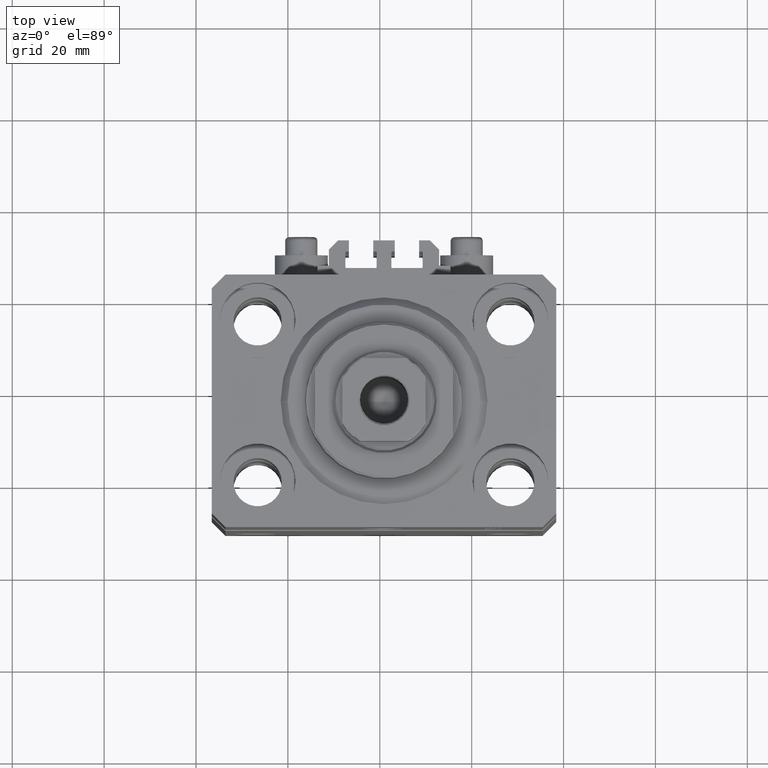
[diagram: clean part render]
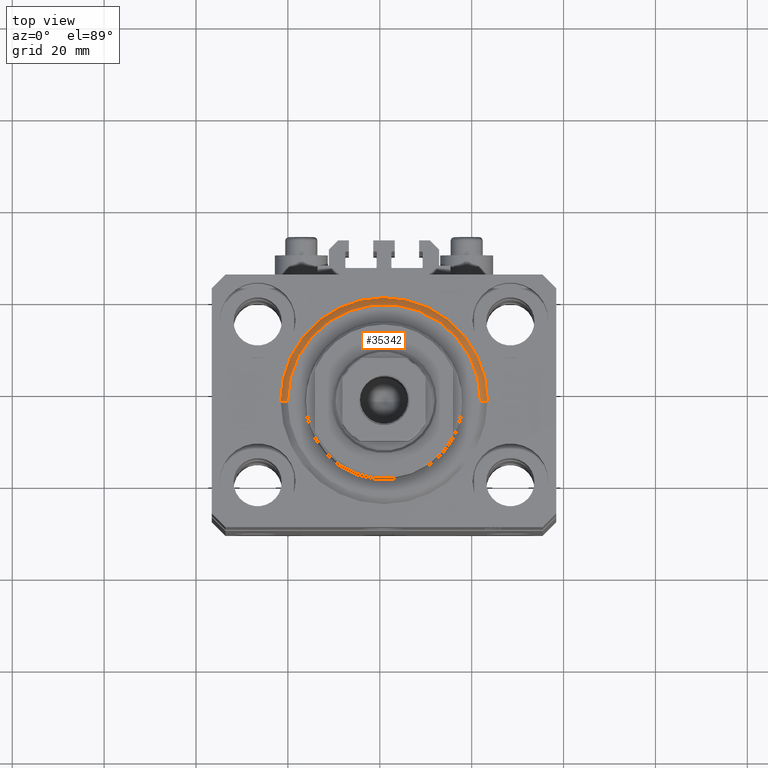
[diagram: same view with one face highlighted and labeled with its STEP entity id]
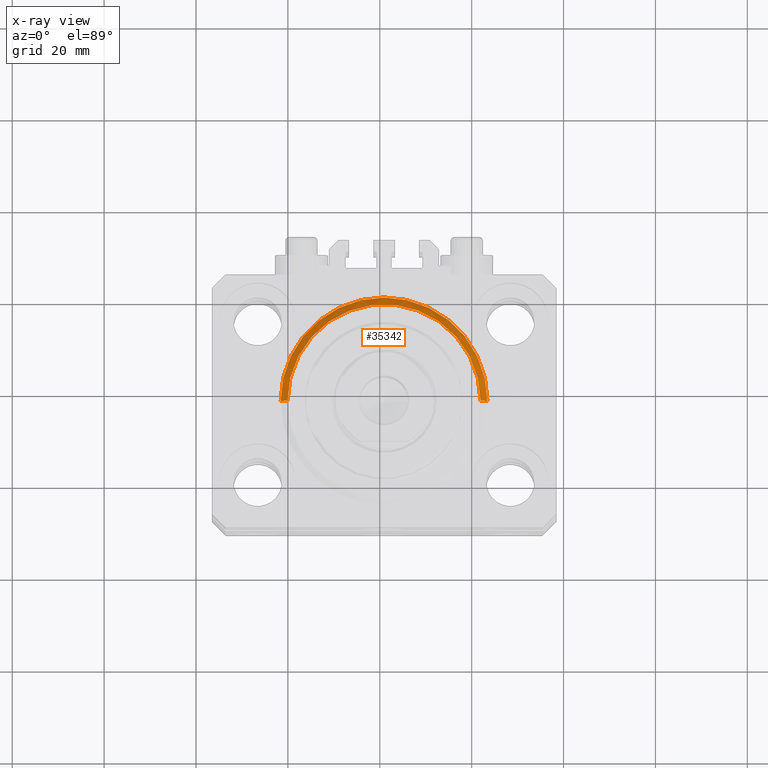
[diagram: x-ray of the same camera — body ghosted, the highlighted face saturated]
A machine part, top view. The second image highlights one B-rep face of the part: STEP entity #35342.
The next image is the same camera in x-ray: the body ghosted, the highlighted face saturated — about 0% of this face is hidden behind the body in this view.
In plain terms, the highlighted conical surface has half-angle 45 deg.
Its self-contained STEP definition (entity closure, byte-faithful):
#22 = DIRECTION ( 'NONE',  ( 0.7071067811865500152, 0.000000000000000000, 0.7071067811865451302 ) ) ;
#1331 = CARTESIAN_POINT ( 'NONE',  ( -20.99999999999998934, 2.663606788145492628E-15, 0.000000000000000000 ) ) ;
#1695 = EDGE_LOOP ( 'NONE', ( #15442, #12752, #2218, #44847 ) ) ;
#2218 = ORIENTED_EDGE ( 'NONE', *, *, #40507, .F. ) ;
#2500 = DIRECTION ( 'NONE',  ( 1.000000000000000000, 0.000000000000000000, 0.000000000000000000 ) ) ;
#4777 = AXIS2_PLACEMENT_3D ( 'NONE', #7534, #22142, #33168 ) ;
#6455 = VERTEX_POINT ( 'NONE', #21613 ) ;
#7046 = VERTEX_POINT ( 'NONE', #15196 ) ;
#7534 = CARTESIAN_POINT ( 'NONE',  ( 0.000000000000000000, 0.000000000000000000, 0.000000000000000000 ) ) ;
#8781 = CONICAL_SURFACE ( 'NONE', #20253, 22.50000000000000355, 0.7853981633974517207 ) ;
#8904 = VERTEX_POINT ( 'NONE', #44577 ) ;
#9149 = DIRECTION ( 'NONE',  ( -0.7071067811865500152, 8.659560562354963673E-17, 0.7071067811865451302 ) ) ;
#10818 = VERTEX_POINT ( 'NONE', #1331 ) ;
#12752 = ORIENTED_EDGE ( 'NONE', *, *, #37619, .T. ) ;
#13522 = DIRECTION ( 'NONE',  ( -0.000000000000000000, -0.000000000000000000, 1.000000000000000000 ) ) ;
#15196 = CARTESIAN_POINT ( 'NONE',  ( -22.50000000000000355, 0.000000000000000000, 1.500000000000001332 ) ) ;
#15442 = ORIENTED_EDGE ( 'NONE', *, *, #30075, .F. ) ;
#16984 = CARTESIAN_POINT ( 'NONE',  ( 0.000000000000000000, 0.000000000000000000, 1.500000000000001332 ) ) ;
#17465 = DIRECTION ( 'NONE',  ( 1.000000000000000000, 0.000000000000000000, 0.000000000000000000 ) ) ;
#20253 = AXIS2_PLACEMENT_3D ( 'NONE', #23821, #13522, #2500 ) ;
#21207 = AXIS2_PLACEMENT_3D ( 'NONE', #16984, #27760, #17465 ) ;
#21613 = CARTESIAN_POINT ( 'NONE',  ( 20.99999999999998934, 0.000000000000000000, 0.000000000000000000 ) ) ;
#22142 = DIRECTION ( 'NONE',  ( -0.000000000000000000, -0.000000000000000000, -1.000000000000000000 ) ) ;
#22676 = CARTESIAN_POINT ( 'NONE',  ( 22.50000000000000355, 0.000000000000000000, 1.500000000000001332 ) ) ;
#23821 = CARTESIAN_POINT ( 'NONE',  ( 0.000000000000000000, 0.000000000000000000, 1.500000000000001332 ) ) ;
#26263 = LINE ( 'NONE', #22676, #36450 ) ;
#27410 = FACE_OUTER_BOUND ( 'NONE', #1695, .T. ) ;
#27760 = DIRECTION ( 'NONE',  ( -0.000000000000000000, -0.000000000000000000, 1.000000000000000000 ) ) ;
#30075 = EDGE_CURVE ( 'NONE', #10818, #6455, #33844, .T. ) ;
#33168 = DIRECTION ( 'NONE',  ( 1.000000000000000000, 0.000000000000000000, 0.000000000000000000 ) ) ;
#33844 = CIRCLE ( 'NONE', #4777, 20.99999999999998934 ) ;
#35031 = LINE ( 'NONE', #44826, #40200 ) ;
#35342 = ADVANCED_FACE ( 'NONE', ( #27410 ), #8781, .T. ) ;
#36450 = VECTOR ( 'NONE', #22, 1000.000000000000114 ) ;
#37619 = EDGE_CURVE ( 'NONE', #10818, #7046, #35031, .T. ) ;
#40200 = VECTOR ( 'NONE', #9149, 1000.000000000000114 ) ;
#40507 = EDGE_CURVE ( 'NONE', #8904, #7046, #41858, .T. ) ;
#41858 = CIRCLE ( 'NONE', #21207, 22.50000000000000355 ) ;
#42974 = EDGE_CURVE ( 'NONE', #6455, #8904, #26263, .T. ) ;
#44577 = CARTESIAN_POINT ( 'NONE',  ( 22.50000000000000355, 2.755455298081545172E-15, 1.500000000000001332 ) ) ;
#44826 = CARTESIAN_POINT ( 'NONE',  ( -22.50000000000000355, 2.755455298081545172E-15, 1.500000000000001332 ) ) ;
#44847 = ORIENTED_EDGE ( 'NONE', *, *, #42974, .F. ) ;